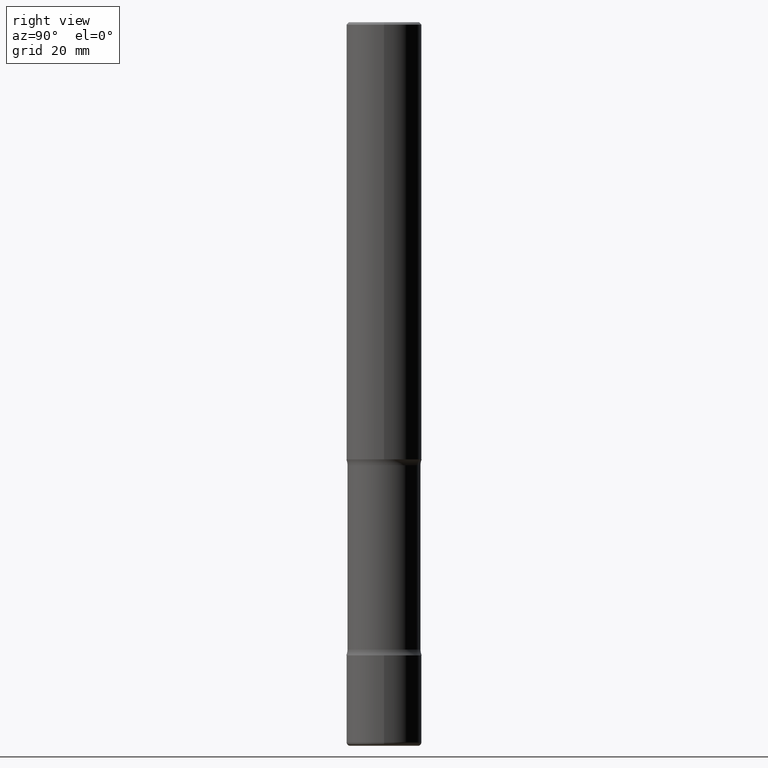
[diagram: clean part render]
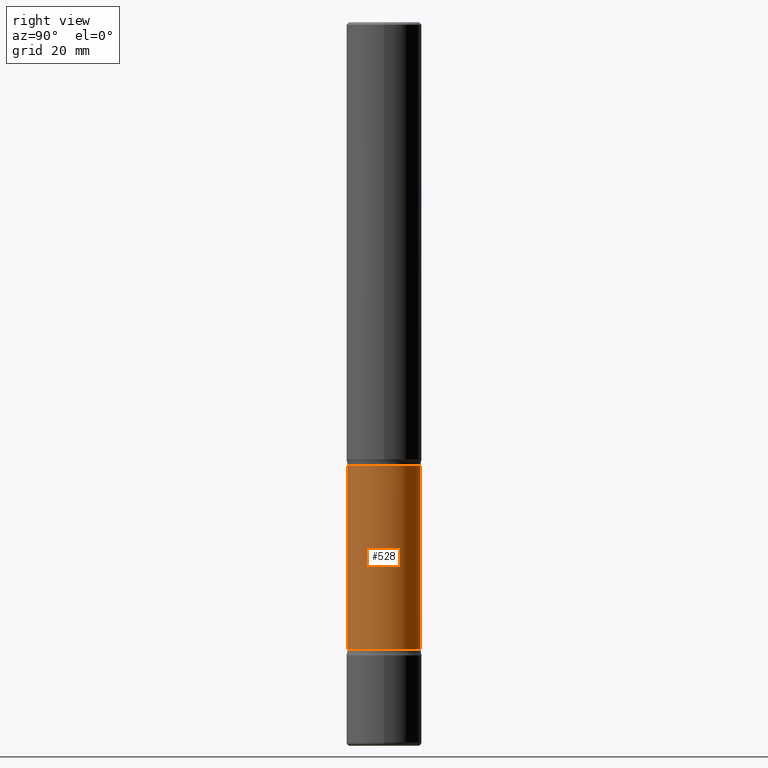
[diagram: same view with one face highlighted and labeled with its STEP entity id]
A machine part, right view. The second image highlights one B-rep face of the part: STEP entity #528.
In plain terms, the highlighted cylindrical surface (edge-blend (fillet) strip) has radius 7.6835 mm, axis along (0, -0, -1).
Its self-contained STEP definition (entity closure, byte-faithful):
#5 = ORIENTED_EDGE ( 'NONE', *, *, #413, .T. ) ;
#7 = LINE ( 'NONE', #439, #477 ) ;
#24 = ORIENTED_EDGE ( 'NONE', *, *, #491, .F. ) ;
#27 = CARTESIAN_POINT ( 'NONE',  ( 2.112346210000245327E-15, 0.3024999999999795075, -6.000000000000001776 ) ) ;
#37 = AXIS2_PLACEMENT_3D ( 'NONE', #190, #282, #301 ) ;
#46 = CARTESIAN_POINT ( 'NONE',  ( 2.112346210000222450E-15, 0.3024999999999818390, -5.201010205144337206 ) ) ;
#96 = ORIENTED_EDGE ( 'NONE', *, *, #442, .F. ) ;
#97 = DIRECTION ( 'NONE',  ( 2.668026719628616344E-29, -3.172765739582314775E-15, -1.000000000000000000 ) ) ;
#98 = CARTESIAN_POINT ( 'NONE',  ( 2.112346210000184979E-15, 0.3024999999999871125, -3.673989794855665458 ) ) ;
#105 = CYLINDRICAL_SURFACE ( 'NONE', #37, 0.3025000000000002132 ) ;
#115 = EDGE_CURVE ( 'NONE', #357, #530, #7, .T. ) ;
#127 = CARTESIAN_POINT ( 'NONE',  ( -2.109603134314663709E-15, -0.3025000000000137579, -3.673989794855663238 ) ) ;
#129 = ORIENTED_EDGE ( 'NONE', *, *, #115, .T. ) ;
#136 = VERTEX_POINT ( 'NONE', #46 ) ;
#154 = CIRCLE ( 'NONE', #454, 0.3025000000000004352 ) ;
#171 = DIRECTION ( 'NONE',  ( 6.982962677686265922E-15, 1.000000000000000000, -3.612360983357703625E-15 ) ) ;
#179 = DIRECTION ( 'NONE',  ( 2.668026719628616344E-29, -3.172765739582314775E-15, -1.000000000000000000 ) ) ;
#190 = CARTESIAN_POINT ( 'NONE',  ( 1.483973127219342911E-28, -2.070985133361325197E-14, -6.000000000000000888 ) ) ;
#229 = EDGE_LOOP ( 'NONE', ( #5, #129, #96, #24 ) ) ;
#242 = CARTESIAN_POINT ( 'NONE',  ( 1.270800515080793348E-28, -1.817484388621929912E-14, -5.201010205144336318 ) ) ;
#247 = LINE ( 'NONE', #27, #252 ) ;
#252 = VECTOR ( 'NONE', #179, 39.37007874015748143 ) ;
#282 = DIRECTION ( 'NONE',  ( 2.668026719628616344E-29, -3.172765739582314775E-15, -1.000000000000000000 ) ) ;
#285 = CIRCLE ( 'NONE', #490, 0.3024999999999999911 ) ;
#301 = DIRECTION ( 'NONE',  ( 6.982962677686265133E-15, 1.000000000000000000, -3.612360983357701258E-15 ) ) ;
#357 = VERTEX_POINT ( 'NONE', #127 ) ;
#367 = CARTESIAN_POINT ( 'NONE',  ( 8.633873894739503570E-29, -1.332996584481247267E-14, -3.673989794855664570 ) ) ;
#404 = DIRECTION ( 'NONE',  ( 6.982962677686265922E-15, 1.000000000000000000, -3.612360983357698103E-15 ) ) ;
#413 = EDGE_CURVE ( 'NONE', #495, #357, #154, .T. ) ;
#425 = CARTESIAN_POINT ( 'NONE',  ( -2.109603134314618744E-15, -0.3025000000000181433, -5.201010205144335430 ) ) ;
#439 = CARTESIAN_POINT ( 'NONE',  ( -2.075300644325740765E-15, -0.3025000000000208633, -5.999999999999999112 ) ) ;
#442 = EDGE_CURVE ( 'NONE', #136, #530, #285, .T. ) ;
#449 = FACE_OUTER_BOUND ( 'NONE', #229, .T. ) ;
#454 = AXIS2_PLACEMENT_3D ( 'NONE', #367, #494, #404 ) ;
#477 = VECTOR ( 'NONE', #97, 39.37007874015748143 ) ;
#490 = AXIS2_PLACEMENT_3D ( 'NONE', #242, #542, #171 ) ;
#491 = EDGE_CURVE ( 'NONE', #495, #136, #247, .T. ) ;
#494 = DIRECTION ( 'NONE',  ( 2.668026719628616344E-29, -3.172765739582314775E-15, -1.000000000000000000 ) ) ;
#495 = VERTEX_POINT ( 'NONE', #98 ) ;
#528 = ADVANCED_FACE ( 'NONE', ( #449 ), #105, .T. ) ;
#530 = VERTEX_POINT ( 'NONE', #425 ) ;
#542 = DIRECTION ( 'NONE',  ( 2.668026719628616344E-29, -3.172765739582314775E-15, -1.000000000000000000 ) ) ;